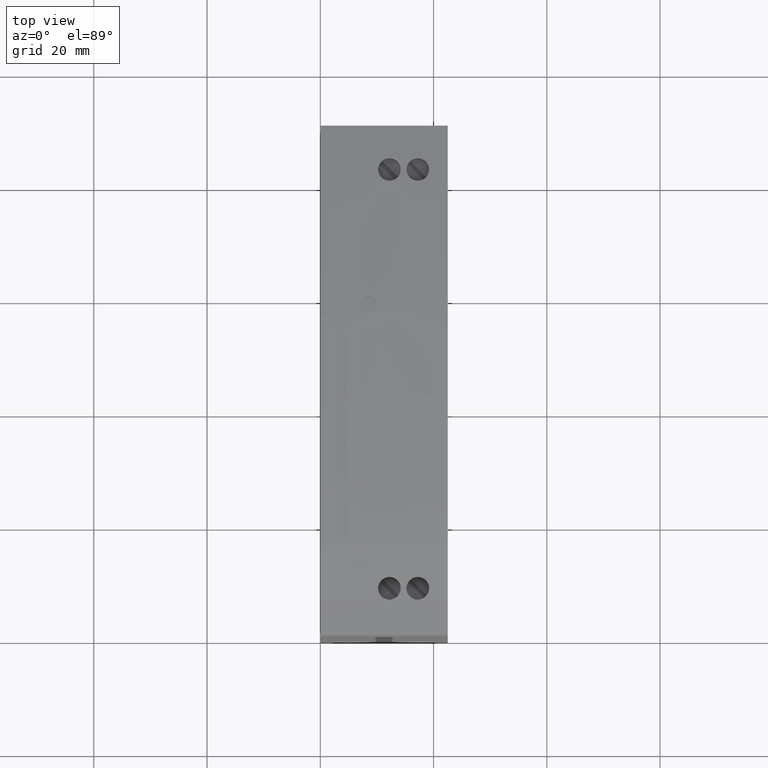
[diagram: clean part render]
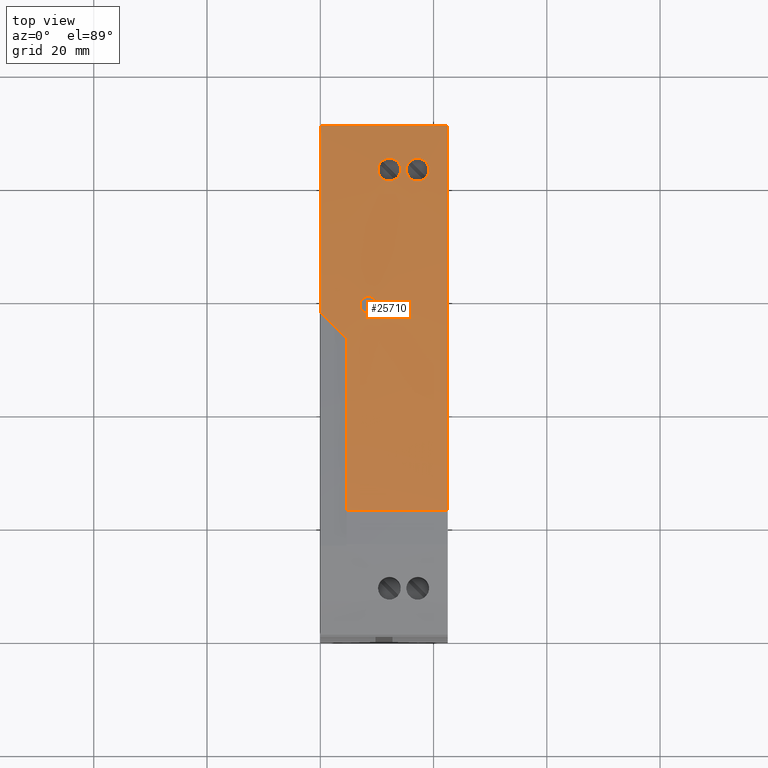
[diagram: same view with one face highlighted and labeled with its STEP entity id]
A machine part, top view. The second image highlights one B-rep face of the part: STEP entity #25710.
In plain terms, the highlighted cylindrical surface (partial cylindrical patch) has radius 350 mm, axis along (1, 0, 0).
Its self-contained STEP definition (entity closure, byte-faithful):
#22900=CARTESIAN_POINT('',(-33.8174223565983,-259.934984106395,1.));
#22910=DIRECTION('',(0.,0.,1.));
#22920=DIRECTION('',(0.,1.,0.));
#22930=AXIS2_PLACEMENT_3D('',#22900,#22910,#22920);
#22940=CYLINDRICAL_SURFACE('',#22930,350.000000000006);
#22950=CARTESIAN_POINT('',(-33.8174223565983,-259.934984106395,
24.3158987492451));
#22960=DIRECTION('',(-0.707106781186548,0.,-0.707106781186548));
#22970=DIRECTION('',(0.707106781186548,0.,-0.707106781186548));
#22980=AXIS2_PLACEMENT_3D('',#22950,#22960,#22970);
#22990=ELLIPSE('',#22980,494.974746830592,350.000000000006);
#23000=CARTESIAN_POINT('',(7.39847639264693,87.6297576185051,-16.9));
#23010=VERTEX_POINT('',#23000);
#23020=CARTESIAN_POINT('',(11.9984763926469,87.0533491582889,
-21.5000000000001));
#23030=VERTEX_POINT('',#23020);
#23040=EDGE_CURVE('',#23010,#23030,#22990,.T.);
#23050=ORIENTED_EDGE('',*,*,#23040,.F.);
#23060=CARTESIAN_POINT('',(-33.8174223565983,-259.934984106395,-21.5));
#23070=DIRECTION('',(0.,0.,1.));
#23080=DIRECTION('',(0.,1.,0.));
#23090=AXIS2_PLACEMENT_3D('',#23060,#23070,#23080);
#23100=CIRCLE('',#23090,350.000000000006);
#23110=CARTESIAN_POINT('',(44.998476392647,81.0753589982581,-21.5));
#23120=VERTEX_POINT('',#23110);
#23130=EDGE_CURVE('',#23120,#23030,#23100,.T.);
#23140=ORIENTED_EDGE('',*,*,#23130,.T.);
#23150=CARTESIAN_POINT('',(44.998476392647,81.0753589982581,1.));
#23160=DIRECTION('',(0.,0.,1.));
#23170=VECTOR('',#23160,1.);
#23180=LINE('',#23150,#23170);
#23190=CARTESIAN_POINT('',(44.998476392647,81.0753589982581,1.));
#23200=VERTEX_POINT('',#23190);
#23210=EDGE_CURVE('',#23120,#23200,#23180,.T.);
#23220=ORIENTED_EDGE('',*,*,#23210,.F.);
#23230=CARTESIAN_POINT('',(-33.8174223565983,-259.934984106395,1.));
#23240=DIRECTION('',(0.,0.,1.));
#23250=DIRECTION('',(0.,1.,0.));
#23260=AXIS2_PLACEMENT_3D('',#23230,#23240,#23250);
#23270=CIRCLE('',#23260,350.000000000006);
#23280=CARTESIAN_POINT('',(-23.0409203779481,89.8990722762113,1.));
#23290=VERTEX_POINT('',#23280);
#23300=EDGE_CURVE('',#23200,#23290,#23270,.T.);
#23310=ORIENTED_EDGE('',*,*,#23300,.F.);
#23320=CARTESIAN_POINT('',(-23.0409203779481,89.8990722762113,1.));
#23330=DIRECTION('',(0.,0.,-1.));
#23340=VECTOR('',#23330,1.);
#23350=LINE('',#23320,#23340);
#23360=CARTESIAN_POINT('',(-23.0409203779482,89.8990722762115,-16.9));
#23370=VERTEX_POINT('',#23360);
#23380=EDGE_CURVE('',#23290,#23370,#23350,.T.);
#23390=ORIENTED_EDGE('',*,*,#23380,.F.);
#23400=CARTESIAN_POINT('',(-33.8174223565983,-259.934984106395,-16.9));
#23410=DIRECTION('',(0.,0.,1.));
#23420=DIRECTION('',(0.,1.,0.));
#23430=AXIS2_PLACEMENT_3D('',#23400,#23410,#23420);
#23440=CIRCLE('',#23430,350.000000000006);
#23450=EDGE_CURVE('',#23010,#23370,#23440,.T.);
#23460=ORIENTED_EDGE('',*,*,#23450,.T.);
#23470=EDGE_LOOP('',(#23460,#23390,#23310,#23220,#23140,#23050));
#23480=FACE_OUTER_BOUND('',#23470,.T.);
#23490=CARTESIAN_POINT('',(13.1984817606206,86.6921034492257,-11.5));
#23500=CARTESIAN_POINT('',(13.0055555978401,86.7181688267425,
-11.5000172862122));
#23510=CARTESIAN_POINT('',(12.6154612248136,86.7708727055403,
-11.5756089696318));
#23520=CARTESIAN_POINT('',(12.1127511947706,86.8387915742188,
-11.9088011428697));
#23530=CARTESIAN_POINT('',(11.7787944546882,86.8839109524259,
-12.4093352634621));
#23540=CARTESIAN_POINT('',(11.6588543533701,86.9001155147061,
-13.0000190004568));
#23550=CARTESIAN_POINT('',(11.7787704303386,86.8839141982466,
-13.5906900328923));
#23560=CARTESIAN_POINT('',(12.1127775662568,86.8387880112871,
-14.0912359554955));
#23570=CARTESIAN_POINT('',(12.6154786035389,86.7708703575796,
-14.4243891701172));
#23580=CARTESIAN_POINT('',(13.0055621510402,86.7181679413694,
-14.499987783014));
#23590=CARTESIAN_POINT('',(13.1984826061552,86.6921033349893,
-14.4999999900542));
#23600=B_SPLINE_CURVE_WITH_KNOTS('',3,(#23490,#23500,#23510,#23520,
#23530,#23540,#23550,#23560,#23570,#23580,#23590),.UNSPECIFIED.,.F.,.F.,
(4,1,1,1,1,1,1,1,4),(0.,0.124601525288921,0.250020484171647,
0.375081460448419,0.500001300574072,0.624919263761973,0.74998345534349,
0.87540031799334,1.),.UNSPECIFIED.);
#23610=DIRECTION('',(0.133889013118048,0.990996333074081,0.));
#23620=VECTOR('',#23610,1.);
#23630=SURFACE_OF_LINEAR_EXTRUSION('',#23600,#23620);
#23640=CARTESIAN_POINT('',(13.2251077904162,86.889179350207,-11.5));
#23650=CARTESIAN_POINT('',(12.9994849806847,86.9197823731419,
-11.5000202172649));
#23660=CARTESIAN_POINT('',(12.7738394898481,86.950150535201,
-11.5514706951073));
#23670=CARTESIAN_POINT('',(12.5699462445855,86.9774141071345,
-11.6507310873835));
#23680=CARTESIAN_POINT('',(12.364352396805,87.0049050750222,
-11.7508193760072));
#23690=CARTESIAN_POINT('',(12.1833022051968,87.0289237237714,
-11.8970733423477));
#23700=CARTESIAN_POINT('',(12.0431106938747,87.047452781023,
-12.0772663182131));
#23710=CARTESIAN_POINT('',(11.8389385586279,87.0744381323291,
-12.3396957926652));
#23720=CARTESIAN_POINT('',(11.7251185274894,87.0893334418509,
-12.6667743370374));
#23730=CARTESIAN_POINT('',(11.7251090276306,87.0893346885867,
-13.0000061838202));
#23740=CARTESIAN_POINT('',(11.7250995273647,87.0893359353758,
-13.3332523130715));
#23750=CARTESIAN_POINT('',(11.8389157796215,87.0744411383346,
-13.6603103035183));
#23760=CARTESIAN_POINT('',(12.043102866026,87.0474538156266,
-13.9227439529264));
#23770=CARTESIAN_POINT('',(12.1833007143175,87.0289239240383,
-14.1029347456655));
#23780=CARTESIAN_POINT('',(12.3643499353629,87.0049054045122,
-14.2491829699326));
#23790=CARTESIAN_POINT('',(12.5699468388128,86.9774140276774,
-14.349269950773));
#23800=CARTESIAN_POINT('',(12.773839817471,86.9501504910375,
-14.4485274410662));
#23810=CARTESIAN_POINT('',(12.999486683036,86.9197821427985,
-14.4999857128183));
#23820=CARTESIAN_POINT('',(13.2251086358911,86.8891792355285,
-14.4999999900542));
#23830=B_SPLINE_CURVE_WITH_KNOTS('',3,(#23640,#23650,#23660,#23670,
#23680,#23690,#23700,#23710,#23720,#23730,#23740,#23750,#23760,#23770,
#23780,#23790,#23800,#23810,#23820),.UNSPECIFIED.,.F.,.F.,(4,3,3,3,3,3,4
),(0.,0.683784518436677,1.37118459360683,2.36633691669822,
3.36148932592983,4.04888981220167,4.73267473464276),.UNSPECIFIED.);
#23840=SURFACE_CURVE('',#23830,(#22940,#23630),.CURVE_3D.);
#23850=CARTESIAN_POINT('',(13.2251077904162,86.889179350207,-11.5));
#23860=VERTEX_POINT('',#23850);
#23870=CARTESIAN_POINT('',(13.2251086358911,86.8891792355285,
-14.4999999900542));
#23880=VERTEX_POINT('',#23870);
#23890=EDGE_CURVE('',#23860,#23880,#23840,.T.);
#23900=ORIENTED_EDGE('',*,*,#23890,.T.);
#23910=CARTESIAN_POINT('',(13.1984817625892,86.6921034489597,-11.5));
#23920=CARTESIAN_POINT('',(13.3913884849968,86.6660406979434,
-11.5000290360754));
#23930=CARTESIAN_POINT('',(13.7814001998191,86.6133479867201,
-11.575844171203));
#23940=CARTESIAN_POINT('',(14.2843524047987,86.5453963988859,
-11.9083232139435));
#23950=CARTESIAN_POINT('',(14.6189250564467,86.5001938076649,
-12.4090424369122));
#23960=CARTESIAN_POINT('',(14.7389975518286,86.4839713582241,
-13.0001792020605));
#23970=CARTESIAN_POINT('',(14.6188661041923,86.5002017724362,
-13.5912793115496));
#23980=CARTESIAN_POINT('',(14.2843255024885,86.5454000335348,
-14.0919121350706));
#23990=CARTESIAN_POINT('',(13.7814075523009,86.6133469933596,
-14.4243060988274));
#24000=CARTESIAN_POINT('',(13.3913969134836,86.6660395592088,
-14.4999714286456));
#24010=CARTESIAN_POINT('',(13.1984826141505,86.6921033339091,-14.5));
#24020=B_SPLINE_CURVE_WITH_KNOTS('',3,(#23910,#23920,#23930,#23940,
#23950,#23960,#23970,#23980,#23990,#24000,#24010),.UNSPECIFIED.,.F.,.F.,
(4,1,1,1,1,1,1,1,4),(0.,0.124580735199533,0.2499639478125,
0.375047362656134,0.500000013310294,0.624952655613596,0.750034170979229,
0.875416818226335,1.),.UNSPECIFIED.);
#24030=DIRECTION('',(0.133889013118048,0.990996333074081,0.));
#24040=VECTOR('',#24030,1.);
#24050=SURFACE_OF_LINEAR_EXTRUSION('',#24020,#24040);
#24060=CARTESIAN_POINT('',(13.2251077923846,86.88917934994,-11.5));
#24070=CARTESIAN_POINT('',(13.4508092628703,86.8585656576177,
-11.5000339746997));
#24080=CARTESIAN_POINT('',(13.6764806633102,86.8277179364559,
-11.5516783160056));
#24090=CARTESIAN_POINT('',(13.8803569800884,86.7996721458367,
-11.6508827282254));
#24100=CARTESIAN_POINT('',(14.0859960687152,86.7713838634413,
-11.750944889633));
#24110=CARTESIAN_POINT('',(14.2670163059993,86.7462914177559,
-11.8970389037577));
#24120=CARTESIAN_POINT('',(14.4072307221891,86.7267859742344,
-12.0773048976902));
#24130=CARTESIAN_POINT('',(14.6113415623534,86.6983918007025,
-12.3397190236728));
#24140=CARTESIAN_POINT('',(14.725051822759,86.6824248628474,
-12.6667749388135));
#24150=CARTESIAN_POINT('',(14.7250589325744,86.6824238671441,
-13.0000692941498));
#24160=CARTESIAN_POINT('',(14.725066042118,86.6824228714789,
-13.3333509056074));
#24170=CARTESIAN_POINT('',(14.6113725594298,86.6983874599416,
-13.6604344133985));
#24180=CARTESIAN_POINT('',(14.4072785555143,86.7267793200634,
-13.9228497492662));
#24190=CARTESIAN_POINT('',(14.2670720962065,86.7462836764113,
-14.1031212143962));
#24200=CARTESIAN_POINT('',(14.086047302858,86.7713767948167,
-14.2492208864151));
#24210=CARTESIAN_POINT('',(13.8803912524074,86.7996674312399,
-14.349249986398));
#24220=CARTESIAN_POINT('',(13.6764909510477,86.82771654178,
-14.448425107123));
#24230=CARTESIAN_POINT('',(13.4508114717162,86.8585653574499,
-14.4999665701758));
#24240=CARTESIAN_POINT('',(13.2251086438858,86.8891792344441,-14.5));
#24250=B_SPLINE_CURVE_WITH_KNOTS('',3,(#24060,#24070,#24080,#24090,
#24100,#24110,#24120,#24130,#24140,#24150,#24160,#24170,#24180,#24190,
#24200,#24210,#24220,#24230,#24240),.UNSPECIFIED.,.F.,.F.,(4,3,3,3,3,3,4
),(0.,0.684060528390628,1.37172166931323,2.36697046026307,
3.36221858739487,4.0498820158736,4.73394187113418),.UNSPECIFIED.);
#24260=SURFACE_CURVE('',#24250,(#22940,#24050),.CURVE_3D.);
#24270=EDGE_CURVE('',#23860,#23880,#24260,.T.);
#24280=ORIENTED_EDGE('',*,*,#24270,.F.);
#24290=EDGE_LOOP('',(#24280,#23900));
#24300=FACE_BOUND('',#24290,.T.);
#24310=CARTESIAN_POINT('',(37.1984763926329,80.1290722762113,-9.3));
#24320=DIRECTION('',(0.,-1.,0.));
#24330=DIRECTION('',(0.,0.,-1.));
#24340=AXIS2_PLACEMENT_3D('',#24310,#24320,#24330);
#24350=CYLINDRICAL_SURFACE('',#24340,1.99999999999999);
#24360=CARTESIAN_POINT('',(35.9311956553943,83.044797054859,
-7.75274451591729));
#24370=CARTESIAN_POINT('',(36.020505111017,83.0266350189395,
-7.67959554089134));
#24380=CARTESIAN_POINT('',(36.1163725522379,83.0071025878325,
-7.61408006364859));
#24390=CARTESIAN_POINT('',(36.2167531583835,82.9866020615529,
-7.55752489506012));
#24400=CARTESIAN_POINT('',(36.3172187516942,82.9660841785179,
-7.50092184408037));
#24410=CARTESIAN_POINT('',(36.4216153554369,82.9447172217389,
-7.45352841734165));
#24420=CARTESIAN_POINT('',(36.5289314908513,82.9226984681303,
-7.41540199923212));
#24430=CARTESIAN_POINT('',(36.6364406680203,82.900640106882,
-7.37720699879231));
#24440=CARTESIAN_POINT('',(36.7472511308003,82.8778510192482,
-7.34825578931552));
#24450=CARTESIAN_POINT('',(36.8592254700604,82.8547640658498,
-7.32898279775805));
#24460=CARTESIAN_POINT('',(36.9713202013282,82.8316522899368,
-7.30968908436233));
#24470=CARTESIAN_POINT('',(37.0849014576514,82.8081761913233,
-7.30000000000001));
#24480=CARTESIAN_POINT('',(37.1984763926329,82.7846420092442,
-7.30000000000001));
#24490=B_SPLINE_CURVE_WITH_KNOTS('',3,(#24360,#24370,#24380,#24390,
#24400,#24410,#24420,#24430,#24440,#24450,#24460,#24470,#24480),
.UNSPECIFIED.,.F.,.F.,(4,3,3,3,4),(0.,0.35120373023298,0.700531232207715
,1.04904605481684,1.3970827915383),.UNSPECIFIED.);
#24500=SURFACE_CURVE('',#24490,(#22940,#24350),.CURVE_3D.);
#24510=CARTESIAN_POINT('',(35.9311956553943,83.044797054859,
-7.75274451591729));
#24520=VERTEX_POINT('',#24510);
#24530=CARTESIAN_POINT('',(37.1984763926329,82.7846420092442,
-7.30000000000001));
#24540=VERTEX_POINT('',#24530);
#24550=EDGE_CURVE('',#24520,#24540,#24500,.T.);
#24560=ORIENTED_EDGE('',*,*,#24550,.F.);
#24570=CARTESIAN_POINT('',(37.1984763926329,82.7846420092442,
-7.30000000000001));
#24580=CARTESIAN_POINT('',(37.4961463098762,82.7229609875203,
-7.30000000000001));
#24590=CARTESIAN_POINT('',(37.7936485234097,82.6608865131233,
-7.3672916926736));
#24600=CARTESIAN_POINT('',(38.0635206162501,82.6042545763268,
-7.49675334710226));
#24610=CARTESIAN_POINT('',(38.3355833363076,82.5471629422684,
-7.62726587796939));
#24620=CARTESIAN_POINT('',(38.5754650412523,82.4964790795566,
-7.81823322762953));
#24630=CARTESIAN_POINT('',(38.7639561588967,82.4565220569369,
-8.0553020039308));
#24640=CARTESIAN_POINT('',(39.0434318321506,82.397277802155,
-8.40680374413102));
#24650=CARTESIAN_POINT('',(39.1981441028853,82.3641935945167,
-8.84656654092151));
#24660=CARTESIAN_POINT('',(39.19847585385,82.3641228286451,
-9.29853196346973));
#24670=CARTESIAN_POINT('',(39.1988084354584,82.3640518855886,
-9.75162902465869));
#24680=CARTESIAN_POINT('',(39.044384919327,82.3970747382394,
-10.1912995508494));
#24690=CARTESIAN_POINT('',(38.7651564820738,82.4562676059297,
-10.5431868312323));
#24700=CARTESIAN_POINT('',(38.5776636390645,82.4960136975467,
-10.7794677317983));
#24710=CARTESIAN_POINT('',(38.3363412056098,82.5470022051456,
-10.9719897019966));
#24720=CARTESIAN_POINT('',(38.0655730697694,82.6038238680261,
-11.1022606228009));
#24730=CARTESIAN_POINT('',(37.7960228823833,82.6603899400622,
-11.2319455689442));
#24740=CARTESIAN_POINT('',(37.4965129087698,82.7228850235313,-11.3));
#24750=CARTESIAN_POINT('',(37.1984763926329,82.7846420092442,-11.3));
#24760=B_SPLINE_CURVE_WITH_KNOTS('',3,(#24570,#24580,#24590,#24600,
#24610,#24620,#24630,#24640,#24650,#24660,#24670,#24680,#24690,#24700,
#24710,#24720,#24730,#24740,#24750),.UNSPECIFIED.,.F.,.F.,(4,3,3,3,3,3,4
),(0.,0.912600569074767,1.82825693375223,3.1743871375938,
4.52150659964054,5.43679212056496,6.35171015852321),.UNSPECIFIED.);
#24770=SURFACE_CURVE('',#24760,(#22940,#24350),.CURVE_3D.);
#24780=CARTESIAN_POINT('',(37.1984763926329,82.7846420092442,-11.3));
#24790=VERTEX_POINT('',#24780);
#24800=EDGE_CURVE('',#24540,#24790,#24770,.T.);
#24810=ORIENTED_EDGE('',*,*,#24800,.F.);
#24820=CARTESIAN_POINT('',(37.1984763926329,82.7846420092442,-11.3));
#24830=CARTESIAN_POINT('',(36.7938362905769,82.8684886241672,-11.3));
#24840=CARTESIAN_POINT('',(36.3934566846473,82.9506384642993,
-11.1760355551515));
#24850=CARTESIAN_POINT('',(36.057286766752,83.0191309366115,
-10.942463466194));
#24860=CARTESIAN_POINT('',(35.7208176644956,83.0876843658252,
-10.7086835028478));
#24870=CARTESIAN_POINT('',(35.4608415643451,83.1401432993376,
-10.3734202224718));
#24880=CARTESIAN_POINT('',(35.3191341403167,83.168697826273,
-9.98415838711453));
#24890=CARTESIAN_POINT('',(35.1774317528141,83.1972513383313,
-9.59491038679268));
#24900=CARTESIAN_POINT('',(35.1599360986427,83.2007569559177,
-9.16819210054977));
#24910=CARTESIAN_POINT('',(35.2707337166888,83.1784471235667,
-8.76726350289876));
#24920=CARTESIAN_POINT('',(35.381012759571,83.1562417097508,
-8.36821140419131));
#24930=CARTESIAN_POINT('',(35.6146664258594,83.1091666694342,
-8.01199801315105));
#24940=CARTESIAN_POINT('',(35.9311956553943,83.044797054859,
-7.75274451591729));
#24950=B_SPLINE_CURVE_WITH_KNOTS('',3,(#24820,#24830,#24840,#24850,
#24860,#24870,#24880,#24890,#24900,#24910,#24920,#24930,#24940),
.UNSPECIFIED.,.F.,.F.,(4,3,3,3,4),(0.,1.23699307380883,2.47542169574247,
3.71371680086392,4.9513414771357),.UNSPECIFIED.);
#24960=SURFACE_CURVE('',#24950,(#22940,#24350),.CURVE_3D.);
#24970=EDGE_CURVE('',#24790,#24520,#24960,.T.);
#24980=ORIENTED_EDGE('',*,*,#24970,.F.);
#24990=EDGE_LOOP('',(#24980,#24810,#24560));
#25000=FACE_BOUND('',#24990,.T.);
#25010=CARTESIAN_POINT('',(37.1984763926329,80.1290722762113,
-4.29999999999999));
#25020=DIRECTION('',(0.,-1.,0.));
#25030=DIRECTION('',(0.,0.,-1.));
#25040=AXIS2_PLACEMENT_3D('',#25010,#25020,#25030);
#25050=CYLINDRICAL_SURFACE('',#25040,1.99999999999998);
#25060=CARTESIAN_POINT('',(38.2124243590828,82.5729737312588,
-6.02392271327117));
#25070=CARTESIAN_POINT('',(38.1355887191296,82.5891323612745,
-6.06911461212003));
#25080=CARTESIAN_POINT('',(38.0562937115018,82.6057811145165,
-6.10884821932043));
#25090=CARTESIAN_POINT('',(37.9749963317338,82.6228192186552,
-6.14309977596949));
#25100=CARTESIAN_POINT('',(37.8935260593613,82.639893557199,
-6.17742417433689));
#25110=CARTESIAN_POINT('',(37.8094075858307,82.6574923309597,
-6.2064800564619));
#25120=CARTESIAN_POINT('',(37.7236274002445,82.6754042353678,
-6.22982289840399));
#25130=CARTESIAN_POINT('',(37.6378483907851,82.6933158941868,
-6.25316542029385));
#25140=CARTESIAN_POINT('',(37.550458513784,82.7115300167772,
-6.27077955233271));
#25150=CARTESIAN_POINT('',(37.4625588035147,82.7298146194421,
-6.28248845652699));
#25160=CARTESIAN_POINT('',(37.3746394698394,82.7481033041021,
-6.2941999747069));
#25170=CARTESIAN_POINT('',(37.2863394077403,82.7664356664811,
-6.29999999999997));
#25180=CARTESIAN_POINT('',(37.1984763926329,82.7846420092441,
-6.29999999999997));
#25190=B_SPLINE_CURVE_WITH_KNOTS('',3,(#25060,#25070,#25080,#25090,
#25100,#25110,#25120,#25130,#25140,#25150,#25160,#25170,#25180),
.UNSPECIFIED.,.F.,.F.,(4,3,3,3,4),(0.,0.270489618847431,
0.541740849947553,0.81376320532357,1.08423443937792),.UNSPECIFIED.);
#25200=SURFACE_CURVE('',#25190,(#22940,#25050),.CURVE_3D.);
#25210=CARTESIAN_POINT('',(38.2124243590828,82.5729737312588,
-6.02392271327118));
#25220=VERTEX_POINT('',#25210);
#25230=CARTESIAN_POINT('',(37.1984763926329,82.7846420092441,
-6.29999999999997));
#25240=VERTEX_POINT('',#25230);
#25250=EDGE_CURVE('',#25220,#25240,#25200,.T.);
#25260=ORIENTED_EDGE('',*,*,#25250,.F.);
#25270=CARTESIAN_POINT('',(37.1984763926329,82.7846420092441,
-6.29999999999997));
#25280=CARTESIAN_POINT('',(36.9022198721218,82.8460301570513,
-6.29999999999997));
#25290=CARTESIAN_POINT('',(36.6042504835483,82.9073461209541,
-6.23283144915077));
#25300=CARTESIAN_POINT('',(36.3352298575279,82.9623844856203,
-6.10410792904115));
#25310=CARTESIAN_POINT('',(36.0650497379653,83.0176600686341,
-5.97482960355279));
#25320=CARTESIAN_POINT('',(35.8239966275795,83.0666331591461,
-5.78364181279449));
#25330=CARTESIAN_POINT('',(35.6362725728311,83.1046408069003,
-5.54880712097449));
#25340=CARTESIAN_POINT('',(35.3538925334926,83.1618130274895,
-5.19556187702831));
#25350=CARTESIAN_POINT('',(35.1982375546838,83.193036735791,
-4.75338726906196));
#25360=CARTESIAN_POINT('',(35.198476669483,83.1929886408406,
-4.29894765000229));
#25370=CARTESIAN_POINT('',(35.1987161285616,83.1929404766427,
-3.84385372494033));
#25380=CARTESIAN_POINT('',(35.35524974142,83.1615397615233,
-3.40171305830453));
#25390=CARTESIAN_POINT('',(35.6380514689188,83.1042806369831,
-3.04897080071977));
#25400=CARTESIAN_POINT('',(35.8263781640108,83.0661499587023,
-2.81406847470585));
#25410=CARTESIAN_POINT('',(36.0669450160822,83.0172746463475,
-2.62374203495453));
#25420=CARTESIAN_POINT('',(36.3380715378944,82.9618030999367,
-2.49453510531427));
#25430=CARTESIAN_POINT('',(36.6072805827972,82.906723862654,
-2.36624196050953));
#25440=CARTESIAN_POINT('',(36.9024232087697,82.845988023092,
-2.30000000000001));
#25450=CARTESIAN_POINT('',(37.1984763926329,82.7846420092442,
-2.30000000000001));
#25460=B_SPLINE_CURVE_WITH_KNOTS('',3,(#25270,#25280,#25290,#25300,
#25310,#25320,#25330,#25340,#25350,#25360,#25370,#25380,#25390,#25400,
#25410,#25420,#25430,#25440,#25450),.UNSPECIFIED.,.F.,.F.,(4,3,3,3,3,3,4
),(0.,0.910132354506713,1.82170133804236,3.17524869701435,
4.5295604452285,5.44146259901861,6.34839260190238),.UNSPECIFIED.);
#25470=SURFACE_CURVE('',#25460,(#22940,#25050),.CURVE_3D.);
#25480=CARTESIAN_POINT('',(37.1984763926329,82.7846420092442,
-2.30000000000001));
#25490=VERTEX_POINT('',#25480);
#25500=EDGE_CURVE('',#25240,#25490,#25470,.T.);
#25510=ORIENTED_EDGE('',*,*,#25500,.F.);
#25520=CARTESIAN_POINT('',(37.1984763926329,82.7846420092442,
-2.30000000000001));
#25530=CARTESIAN_POINT('',(37.6285092871543,82.695533682294,
-2.30000000000001));
#25540=CARTESIAN_POINT('',(38.0527681697956,82.6066964579263,
-2.43960306785203));
#25550=CARTESIAN_POINT('',(38.4017581050258,82.5331019592352,
-2.70246655101661));
#25560=CARTESIAN_POINT('',(38.7491663453482,82.4598410061055,
-2.96413868225148));
#25570=CARTESIAN_POINT('',(39.0066059598356,82.4050158491557,
-3.3380265974937));
#25580=CARTESIAN_POINT('',(39.1250653781451,82.3797738037356,
-3.76310626665703));
#25590=CARTESIAN_POINT('',(39.2438764280901,82.3544568305316,
-4.18944773046197));
#25600=CARTESIAN_POINT('',(39.2171198933543,82.3601874076889,
-4.6452969430809));
#25610=CARTESIAN_POINT('',(39.0511228788721,82.3955215679762,
-5.05345935326691));
#25620=CARTESIAN_POINT('',(38.8847998941981,82.4309251143489,
-5.46242327653774));
#25630=CARTESIAN_POINT('',(38.5878766028957,82.4940156604985,
-5.80309550554168));
#25640=CARTESIAN_POINT('',(38.2124243590828,82.5729737312588,
-6.02392271327117));
#25650=B_SPLINE_CURVE_WITH_KNOTS('',3,(#25520,#25530,#25540,#25550,
#25560,#25570,#25580,#25590,#25600,#25610,#25620,#25630,#25640),
.UNSPECIFIED.,.F.,.F.,(4,3,3,3,4),(0.,1.31549882530681,2.6320467450043,
3.94923049394239,5.26750867932418),.UNSPECIFIED.);
#25660=SURFACE_CURVE('',#25650,(#22940,#25050),.CURVE_3D.);
#25670=EDGE_CURVE('',#25490,#25220,#25660,.T.);
#25680=ORIENTED_EDGE('',*,*,#25670,.F.);
#25690=EDGE_LOOP('',(#25680,#25510,#25260));
#25700=FACE_BOUND('',#25690,.T.);
#25710=ADVANCED_FACE('',(#23480,#24300,#25000,#25700),#22940,.T.);